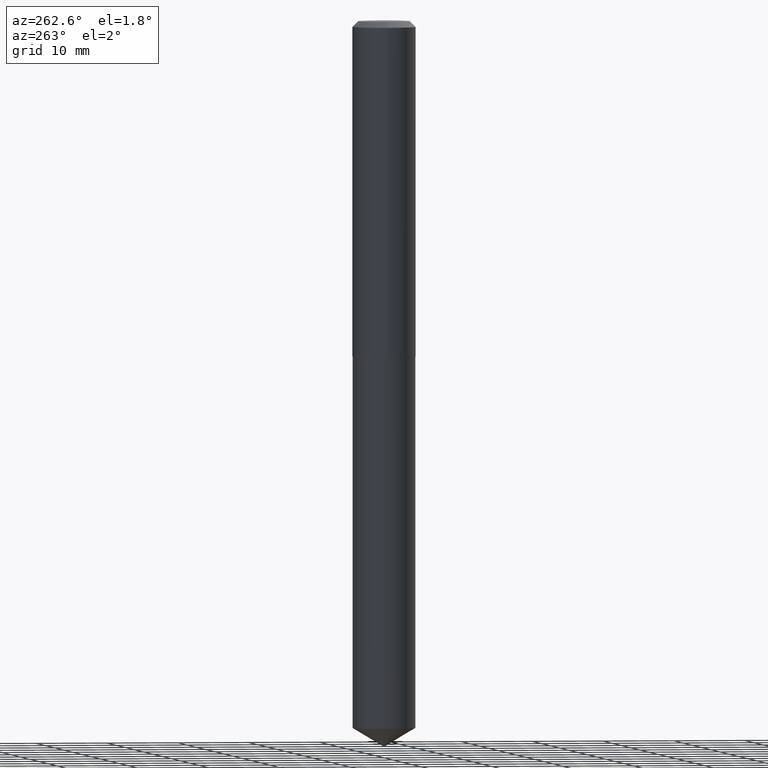
[diagram: clean part render]
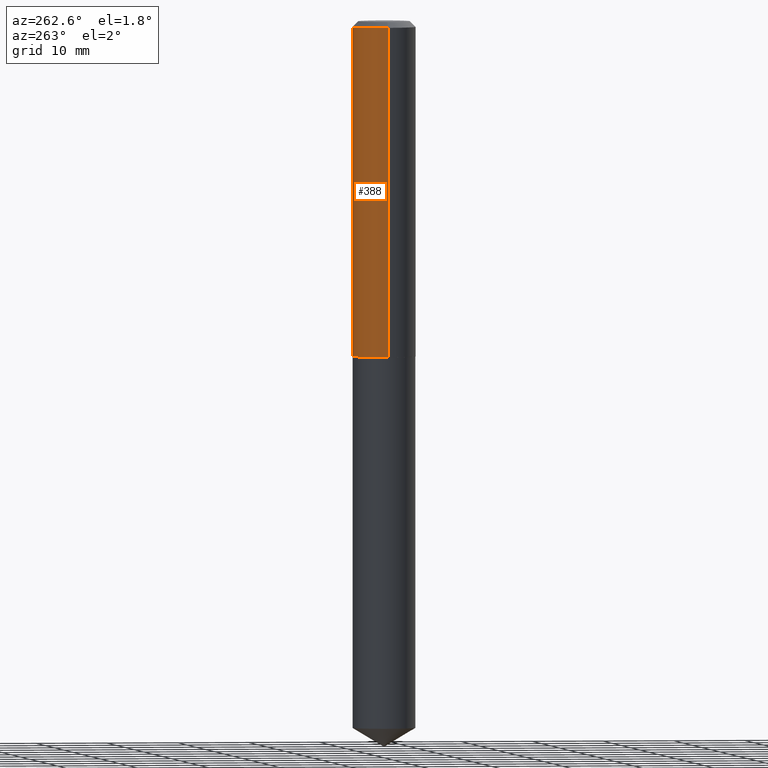
[diagram: same view with one face highlighted and labeled with its STEP entity id]
A machine part, auxiliary view. The second image highlights one B-rep face of the part: STEP entity #388.
In plain terms, the highlighted cylindrical surface (edge-blend (fillet) strip) has radius 4.4196 mm, axis along (-0, 0, 1).
Its self-contained STEP definition (entity closure, byte-faithful):
#8 = VERTEX_POINT ( 'NONE', #337 ) ;
#39 = VECTOR ( 'NONE', #370, 39.37007874015748143 ) ;
#47 = ORIENTED_EDGE ( 'NONE', *, *, #191, .F. ) ;
#53 = CARTESIAN_POINT ( 'NONE',  ( 0.000000000000000000, 0.000000000000000000, 0.000000000000000000 ) ) ;
#72 = ORIENTED_EDGE ( 'NONE', *, *, #244, .F. ) ;
#75 = AXIS2_PLACEMENT_3D ( 'NONE', #53, #80, #240 ) ;
#77 = EDGE_CURVE ( 'NONE', #161, #96, #252, .T. ) ;
#80 = DIRECTION ( 'NONE',  ( -2.445468806185136597E-29, 3.491481338843145583E-15, 1.000000000000000000 ) ) ;
#96 = VERTEX_POINT ( 'NONE', #332 ) ;
#104 = CIRCLE ( 'NONE', #326, 0.1739999999999999880 ) ;
#131 = LINE ( 'NONE', #227, #39 ) ;
#136 = DIRECTION ( 'NONE',  ( 1.000000000000000000, -6.982962677686266711E-15, 0.000000000000000000 ) ) ;
#138 = EDGE_LOOP ( 'NONE', ( #340, #198, #72, #47 ) ) ;
#161 = VERTEX_POINT ( 'NONE', #313 ) ;
#176 = CARTESIAN_POINT ( 'NONE',  ( 4.518003619427039369E-29, -6.450511773512711278E-15, -1.847499999999999920 ) ) ;
#177 = CARTESIAN_POINT ( 'NONE',  ( -0.1739999999999999880, -2.043465922453204373E-15, -0.03125000000000024286 ) ) ;
#183 = CARTESIAN_POINT ( 'NONE',  ( 7.642090019328611420E-31, -1.091087918388491499E-16, -0.03125000000000024286 ) ) ;
#186 = CARTESIAN_POINT ( 'NONE',  ( 0.1740000000000000713, -1.215035505917411055E-15, 8.484547589884932035E-30 ) ) ;
#191 = EDGE_CURVE ( 'NONE', #161, #8, #367, .T. ) ;
#198 = ORIENTED_EDGE ( 'NONE', *, *, #331, .T. ) ;
#200 = AXIS2_PLACEMENT_3D ( 'NONE', #176, #382, #296 ) ;
#227 = CARTESIAN_POINT ( 'NONE',  ( -0.1740000000000000713, 1.236344360222574830E-15, -8.558947057043539962E-30 ) ) ;
#228 = VERTEX_POINT ( 'NONE', #177 ) ;
#239 = CYLINDRICAL_SURFACE ( 'NONE', #75, 0.1740000000000000713 ) ;
#240 = DIRECTION ( 'NONE',  ( 1.000000000000000000, -6.982962677686267499E-15, 4.876176775795935793E-29 ) ) ;
#244 = EDGE_CURVE ( 'NONE', #8, #228, #104, .T. ) ;
#247 = VECTOR ( 'NONE', #364, 39.37007874015748143 ) ;
#252 = CIRCLE ( 'NONE', #200, 0.1740000000000001823 ) ;
#268 = FACE_OUTER_BOUND ( 'NONE', #138, .T. ) ;
#285 = DIRECTION ( 'NONE',  ( -2.445468806185136597E-29, 3.491481338843145583E-15, 1.000000000000000000 ) ) ;
#296 = DIRECTION ( 'NONE',  ( 1.000000000000000000, -6.982962677686264344E-15, 0.000000000000000000 ) ) ;
#313 = CARTESIAN_POINT ( 'NONE',  ( 0.1740000000000001823, -7.665547279430122726E-15, -1.847499999999999920 ) ) ;
#326 = AXIS2_PLACEMENT_3D ( 'NONE', #183, #285, #136 ) ;
#331 = EDGE_CURVE ( 'NONE', #96, #228, #131, .T. ) ;
#332 = CARTESIAN_POINT ( 'NONE',  ( -0.1740000000000001823, -5.214167413290135067E-15, -1.847499999999999920 ) ) ;
#337 = CARTESIAN_POINT ( 'NONE',  ( 0.1739999999999999880, -1.324144297756259366E-15, -0.03125000000000024286 ) ) ;
#340 = ORIENTED_EDGE ( 'NONE', *, *, #77, .T. ) ;
#364 = DIRECTION ( 'NONE',  ( -2.445468806185136877E-29, 3.491481338843145188E-15, 1.000000000000000000 ) ) ;
#367 = LINE ( 'NONE', #186, #247 ) ;
#370 = DIRECTION ( 'NONE',  ( -2.445468806185136877E-29, 3.491481338843145188E-15, 1.000000000000000000 ) ) ;
#382 = DIRECTION ( 'NONE',  ( -2.445468806185136597E-29, 3.491481338843145583E-15, 1.000000000000000000 ) ) ;
#388 = ADVANCED_FACE ( 'NONE', ( #268 ), #239, .T. ) ;